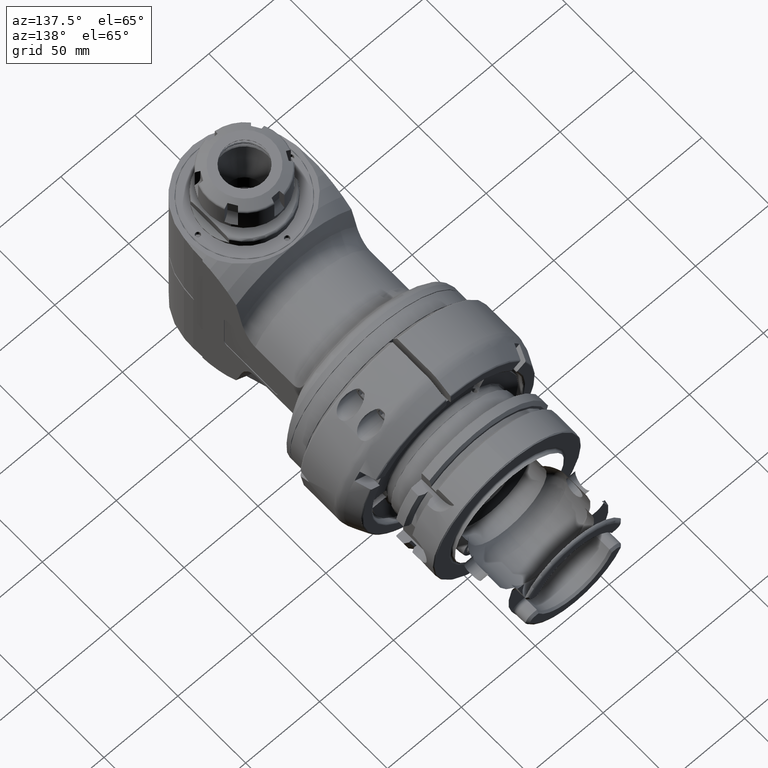
[diagram: clean part render]
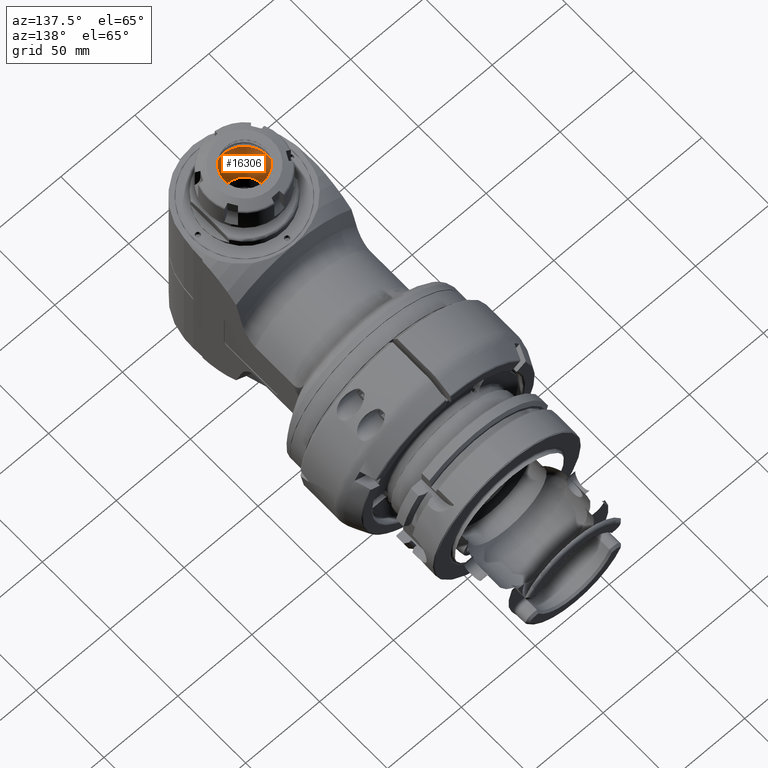
[diagram: same view with one face highlighted and labeled with its STEP entity id]
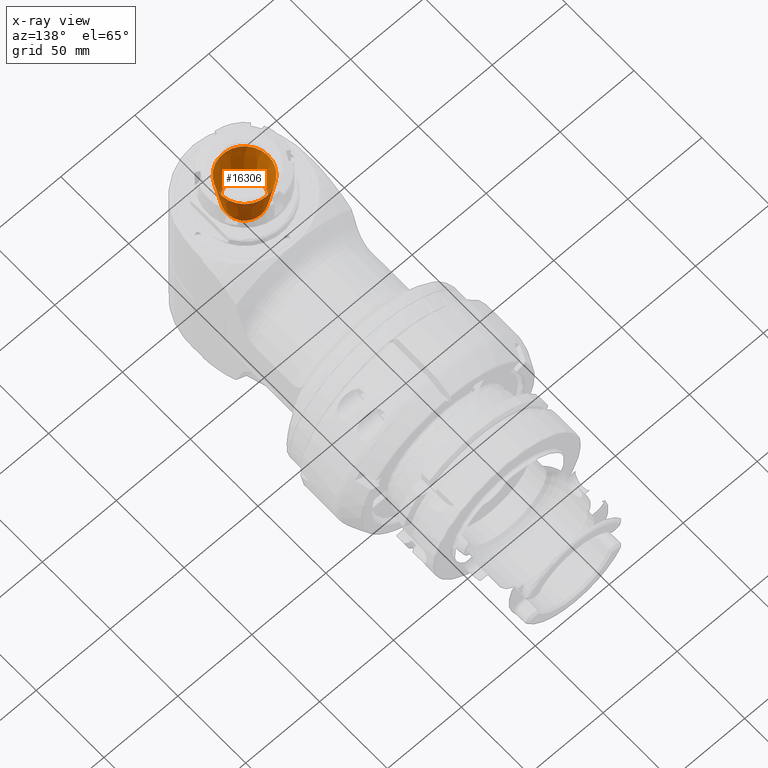
[diagram: x-ray of the same camera — body ghosted, the highlighted face saturated]
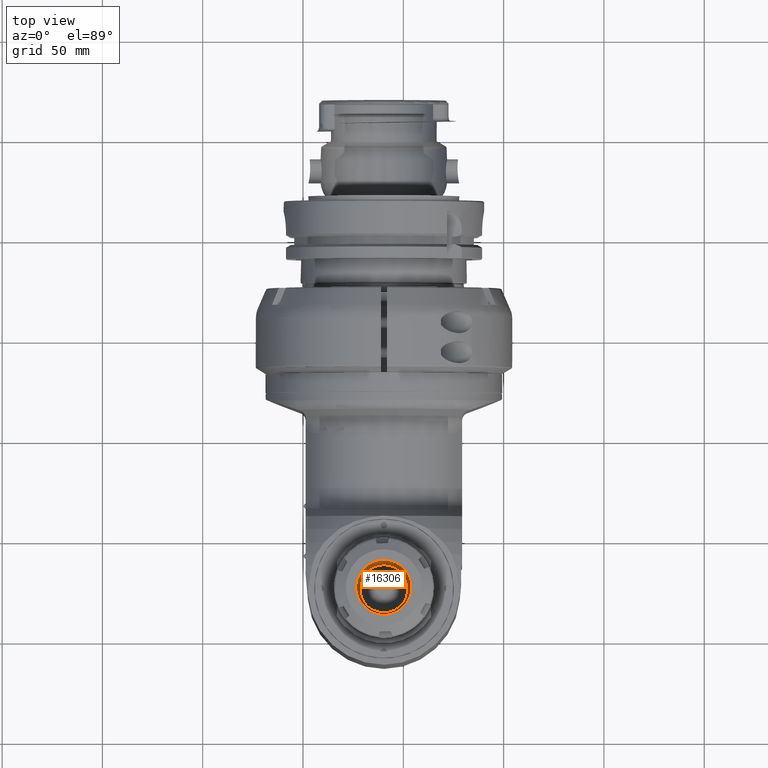
[diagram: same view with one face highlighted and labeled with its STEP entity id]
A machine part, auxiliary view. The second image highlights one B-rep face of the part: STEP entity #16306.
The next image is the same camera in x-ray: the body ghosted, the highlighted face saturated — about 3% of this face is hidden behind the body in this view.
A second angle (top view) of the same face is appended — the face is thin or edge-on in the first view.
In plain terms, the highlighted conical surface has half-angle 8 deg.
Its self-contained STEP definition (entity closure, byte-faithful):
#941=CONICAL_SURFACE('',#17596,13.96485879201,0.139626340159546);
#1366=LINE('',#26356,#2547);
#2547=VECTOR('',#20331,13.96485879201);
#3702=CIRCLE('',#17594,15.92971758402);
#3703=CIRCLE('',#17595,15.92971758402);
#3704=CIRCLE('',#17597,12.);
#4565=FACE_OUTER_BOUND('',#5530,.T.);
#5530=EDGE_LOOP('',(#12371,#12372,#12373,#12374,#12375));
#7079=VERTEX_POINT('',#26348);
#7080=VERTEX_POINT('',#26349);
#7081=VERTEX_POINT('',#26354);
#9075=EDGE_CURVE('',#7079,#7080,#3702,.T.);
#9077=EDGE_CURVE('',#7080,#7079,#3703,.T.);
#9078=EDGE_CURVE('',#7081,#7081,#3704,.T.);
#9079=EDGE_CURVE('',#7081,#7079,#1366,.T.);
#12371=ORIENTED_EDGE('',*,*,#9078,.T.);
#12372=ORIENTED_EDGE('',*,*,#9079,.T.);
#12373=ORIENTED_EDGE('',*,*,#9077,.F.);
#12374=ORIENTED_EDGE('',*,*,#9075,.F.);
#12375=ORIENTED_EDGE('',*,*,#9079,.F.);
#16306=ADVANCED_FACE('',(#4565),#941,.F.);
#17594=AXIS2_PLACEMENT_3D('',#26350,#20322,#20323);
#17595=AXIS2_PLACEMENT_3D('',#26352,#20325,#20326);
#17596=AXIS2_PLACEMENT_3D('',#26353,#20327,#20328);
#17597=AXIS2_PLACEMENT_3D('',#26355,#20329,#20330);
#20322=DIRECTION('center_axis',(0.,1.,0.));
#20323=DIRECTION('ref_axis',(1.,0.,0.));
#20325=DIRECTION('center_axis',(0.,1.,0.));
#20326=DIRECTION('ref_axis',(1.,0.,0.));
#20327=DIRECTION('center_axis',(0.,-1.,0.));
#20328=DIRECTION('ref_axis',(1.,0.,0.));
#20329=DIRECTION('center_axis',(0.,1.,0.));
#20330=DIRECTION('ref_axis',(1.,0.,0.));
#20331=DIRECTION('',(-0.139173100960065,-0.99026806874157,-1.70437892618156E-17));
#26348=CARTESIAN_POINT('',(94.07028241598,-83.49991462529,0.));
#26349=CARTESIAN_POINT('',(110.,-83.4999146252871,-15.9297175840226));
#26350=CARTESIAN_POINT('Origin',(110.,-83.49991462529,0.));
#26352=CARTESIAN_POINT('Origin',(110.,-83.49991462529,0.));
#26353=CARTESIAN_POINT('Origin',(110.,-69.51921786787,0.));
#26354=CARTESIAN_POINT('',(98.,-55.53852111046,0.));
#26355=CARTESIAN_POINT('Origin',(110.,-55.53852111046,0.));
#26356=CARTESIAN_POINT('',(96.03514120799,-69.51921786787,-1.71020196201798E-15));